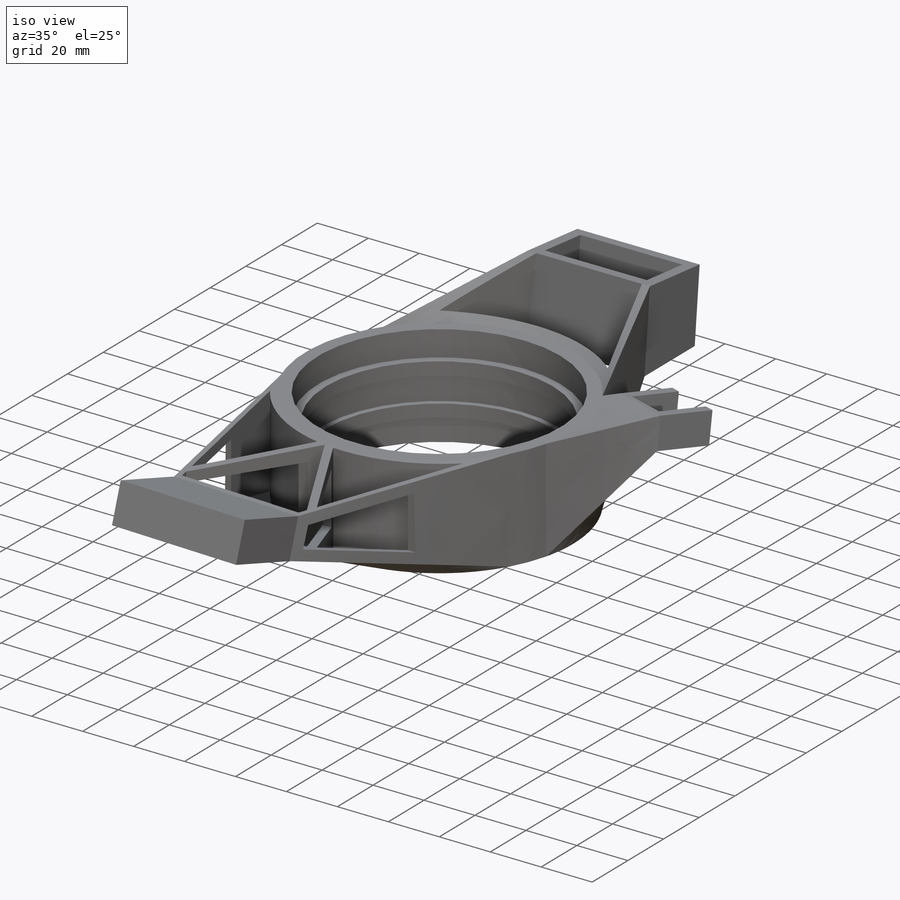
[diagram: iso view]
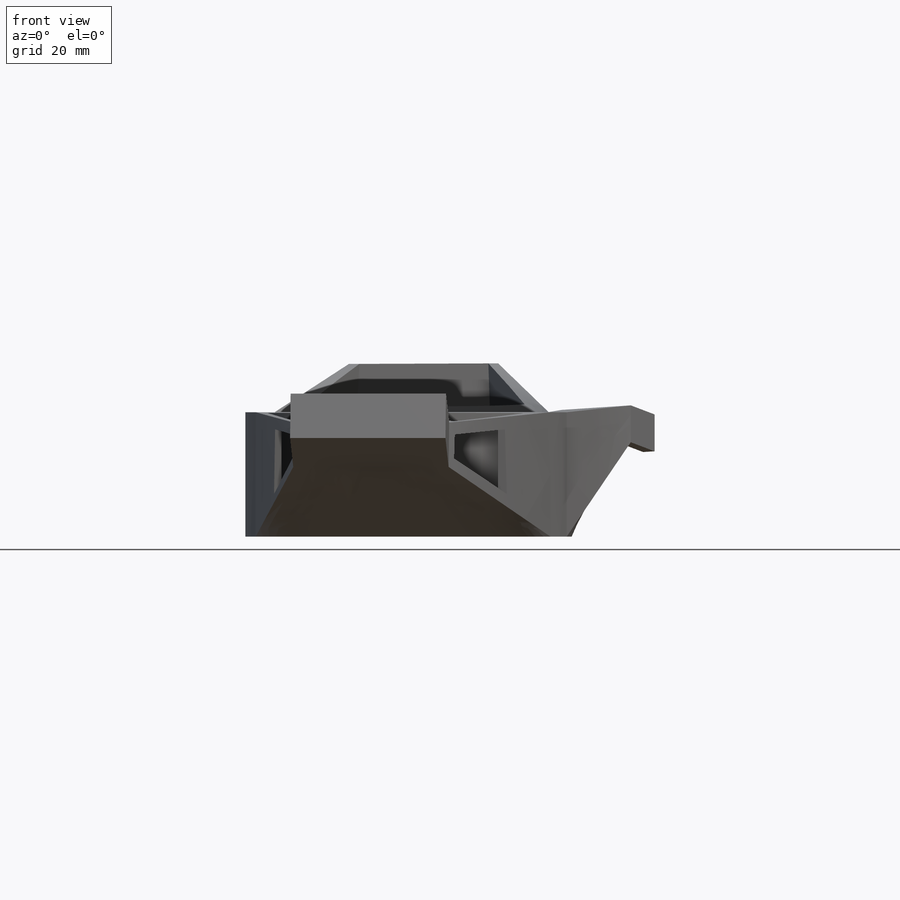
[diagram: front view]
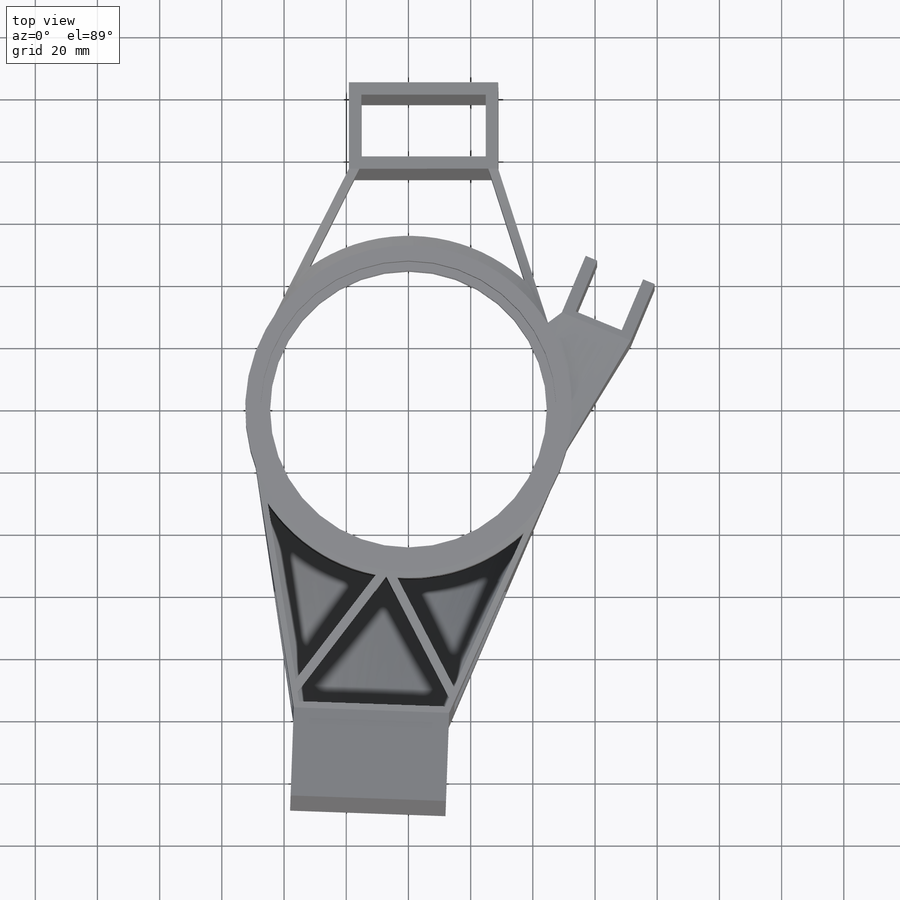
[diagram: top view]
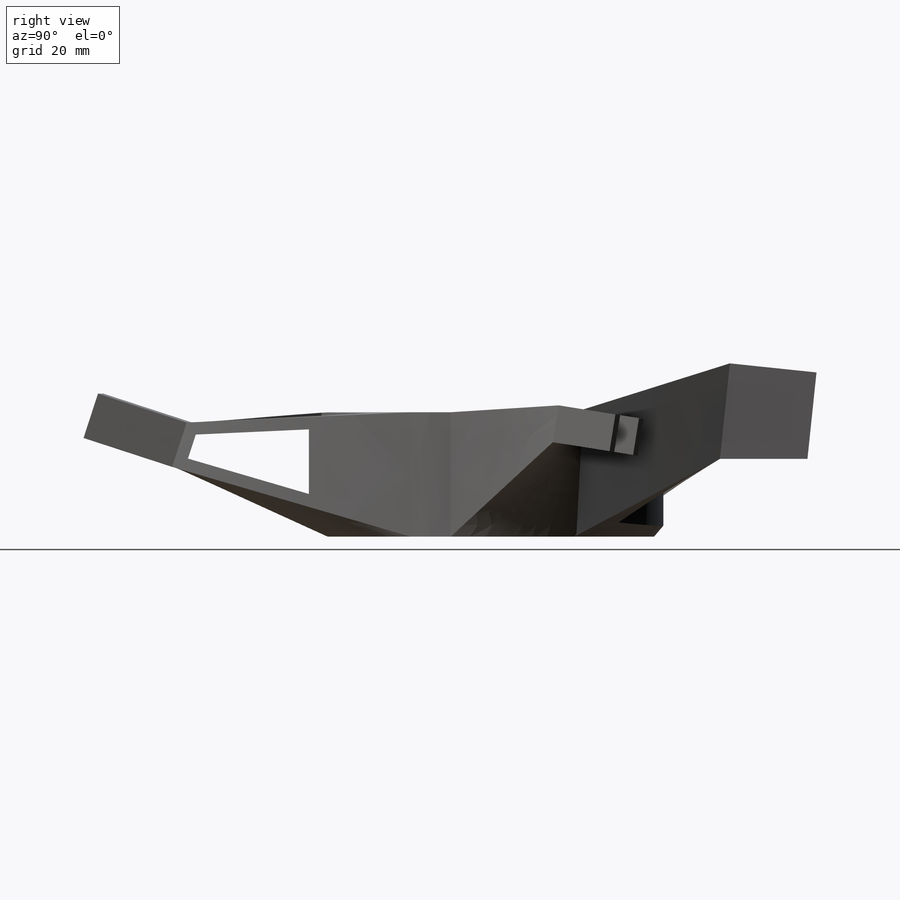
[diagram: right view]
SOLIDWORKS PART (.sldprt)
format: sldprt  version: not decoded by parser v0  size: 650,240 bytes
history: native  units: mm
features: plane x31, sketch x15, revolve x6, extrude x3, material x1 + 7 further entries (+14 scaffold rows collapsed)
feature tree (77):
  scaffold x14  (default folders/planes/origin — collapsed)
  material  "Material <nicht festgelegt>"
  plane  "Ebene vorne"
  plane  "Ebene oben"
  plane  "Ebene rechts"
  sketch  "QuerlenkerPunkte"
  sketch  "Skizze1"  dims[c1.D1=95.0mm c1.D2=89.0mm c1.D3=105.0mm c1.D4=93.0mm c1.D5=5.0mm c1.D6=5.0mm c1.D7=31.0mm c1.D8=10.0mm c1.D9=10.0mm c1.D10=20.0mm c2.D7=11.0mm]
  revolve  "Rotation1"  Angle=360deg
  sketch  "QuerlenkerAchsen"
  plane  "UntereQuerlenkerEbene"
  plane  "ObereQuerlenkerEbene"
  plane  "Boden der Taschen"  Offset=25mm
  "Achse3"
  sketch  "LenkstangeAchse"
  revolve  "Ordner3___EndTag___"  [1 undecoded]
  "QuerlenkerAchseUntenVorne"
  plane  "QuerlenkerEbeneUntenVorneSenkrecht"
  sketch  "QuerlenkerMittelachsePunktUntenVorne"
  "QuerlenkerMittelachseVerbindungUntenVorne"
  plane  "QuerlenkerUntenVorneFlanschebeneLoch"
  plane  "QuerlenkerUntenVorneFlanschebeneLochHilfe"  Offset=12.25mm
  plane  "Kugelgelenk mitte QuerlenkerVorneUnten"
  plane  "Gabel Fläche QuerlenkerUntenVorne"  Offset=0mm
  plane  "Symetrie ebene gabel QuerlenkerUntenVorne"
  plane  "UntenGabelAussenEbene"  Offset=10mm
  plane  "UntenGabelInneEbene"  Offset=10mm
  plane  "UntenSchnittEbeneFachwerk"  Offset=100mm
  sketch  "3D-Skizze2"  dims[D1=38.0mm D2=50.0mm]
  plane  "UntenSchnittFlaschenöffner"  Offset=100mm
  sketch  "Skizze20"  dims[D1=20.0mm D2=20.0mm D3=10.0mm D4=10.0mm D5=4.0mm]
  extrude  "Aufsatz-Linear austragen2"  Depth=7.5mm
  revolve  "QuerlenkerObenVorne"  [1 undecoded]
  revolve  "Ordner2___EndTag___"  [1 undecoded]
  "QuerlenkerAchseObenVorne"
  plane  "QuerlenkerEbeneObenVorneSenkrecht"
  sketch  "QuerlenkerMittelachsePunktObenVorne"
  "QuerlenkerMittelachseVerbindungObenVorne"
  plane  "QuerlenkerObenVorneFlanschebeneLoch"
  plane  "QuerlenkerObenVorneFlanschebeneLochHilfe"  Offset=12.25mm
  plane  "Kugelgelenk mitte QuerlenkerObenVorne"
  plane  "Gabel Fläche QuerlenkerObenVorne"  Offset=20mm
  plane  "Symetrie ebene gabel QuerlenkerObenVorne"
  plane  "ObenGabeInnenEbene"  Offset=10mm
  plane  "ObenGabeAussenEbene"  Offset=10mm
  plane  "ObenSchnitteEbeneFachwerk"  Offset=100mm
  plane  "ObenSchnittFlaschenoeffner"  Offset=100mm
  plane  "ObenPlattenEbene"  Offset=10mm
  sketch  "Skizze8"  dims[c1.D1=25.0mm c1.D2=25.0mm c1.D3=15.0mm c1.D4=15.0mm c2.D2=25.0mm]
  sketch  "3D-Skizze3"  dims[D1=40.0mm D2=55.0mm]
  extrude  "Ausformung26"  [1 undecoded]
  sketch  "Skizze23"  dims[D2=3.0mm D3=3.0mm D4=3.0mm D5=3.0mm D1=2.0mm D6=2.0mm]
  revolve  "Lenkstange"  [1 undecoded]
  revolve  "Ordner1___EndTag___"  [1 undecoded]
  "Achse4"
  plane  "Ebene6"
  "Achse5"
  plane  "Ebene7"
  plane  "Ebene8"  Offset=10mm
  sketch  "Skizze27"  dims[c1.D1=8.0mm c1.D2=8.0mm c1.D3=20.0mm c1.D4=12.0mm c2.D3=4.0mm c2.D5=4.0mm c2.D6=2.0mm c2.D7=18.0mm c3.D5=4.0mm]
  sketch  "3D-Skizze5"  dims[D1=6.0mm D2=15.0mm]
  extrude  "Ausformung27"  [1 undecoded]
  sketch  "Skizze30"  dims[D2=58.5mm D1=4.0mm]
  sketch  "Skizze31"  dims[D1=3.0mm D2=3.0mm D3=3.0mm]
  plane  "Ebene9"  Offset=4mm
decode coverage: 12 of 24 modeling features carry decoded parameters; 7 rows unclassified (native names shown)
note: 7 parameter values undecoded
summary: no parameter record found for 7 features
note: suppression state not decoded; provenance and decode notes live in map.json
